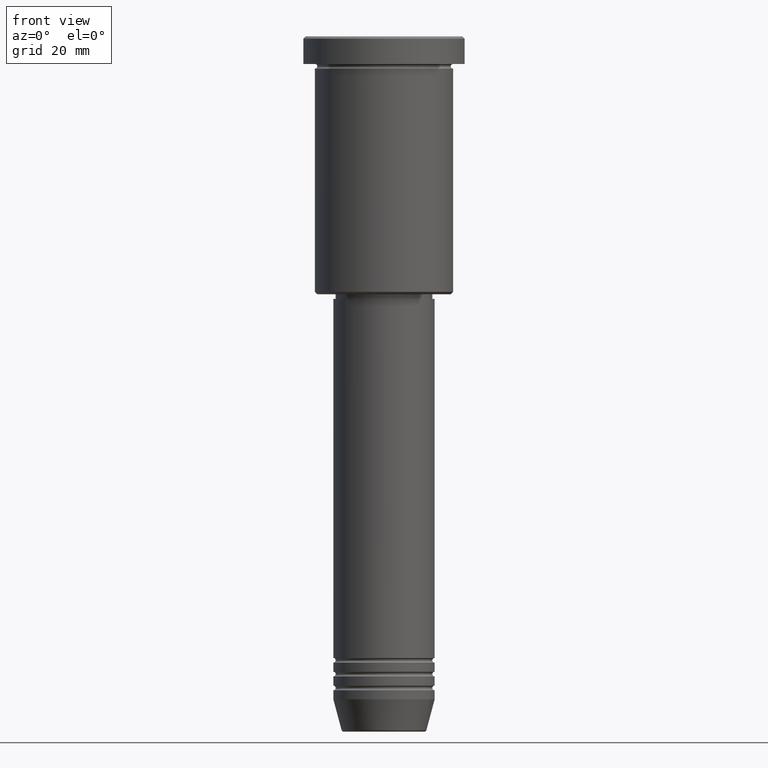
[diagram: clean part render]
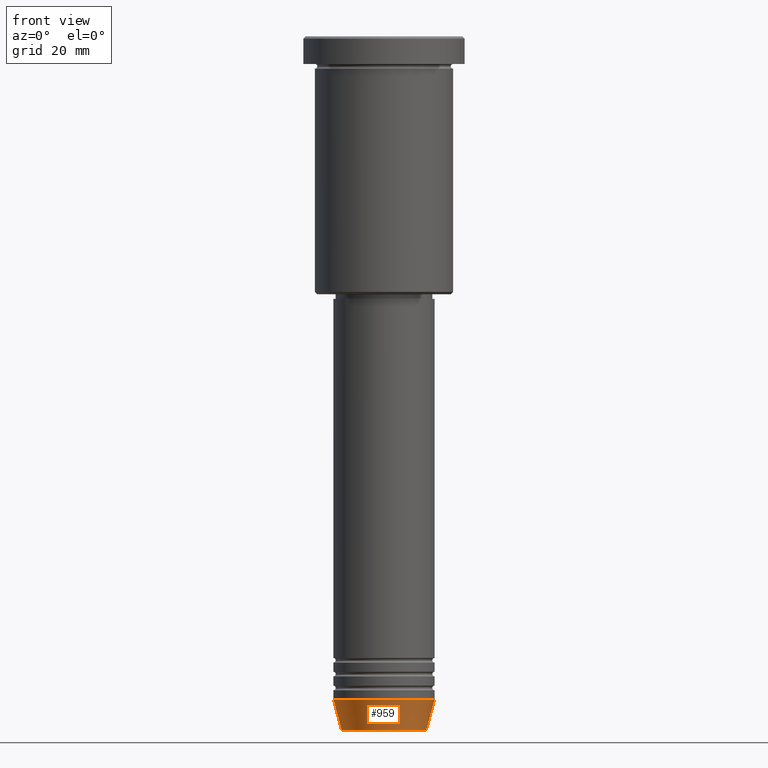
[diagram: same view with one face highlighted and labeled with its STEP entity id]
A machine part, front view. The second image highlights one B-rep face of the part: STEP entity #959.
In plain terms, the highlighted conical surface has half-angle 15 deg.
Its self-contained STEP definition (entity closure, byte-faithful):
#1 = CARTESIAN_POINT ( 'NONE',  ( 11.00000000000000000, 0.000000000000000000, -144.0000000000000284 ) ) ;
#11 = DIRECTION ( 'NONE',  ( 0.2588190451025213501, 0.000000000000000000, 0.9659258262890680902 ) ) ;
#58 = LINE ( 'NONE', #1039, #928 ) ;
#64 = DIRECTION ( 'NONE',  ( 1.000000000000000000, 0.000000000000000000, 0.000000000000000000 ) ) ;
#71 = ORIENTED_EDGE ( 'NONE', *, *, #1020, .F. ) ;
#77 = CARTESIAN_POINT ( 'NONE',  ( 0.000000000000000000, 0.000000000000000000, -150.6294095225512706 ) ) ;
#126 = ORIENTED_EDGE ( 'NONE', *, *, #1135, .F. ) ;
#131 = CARTESIAN_POINT ( 'NONE',  ( -9.223655072137189492, 1.238341722557647202E-15, -150.6294095225512706 ) ) ;
#140 = VERTEX_POINT ( 'NONE', #131 ) ;
#161 = AXIS2_PLACEMENT_3D ( 'NONE', #77, #439, #1093 ) ;
#166 = CARTESIAN_POINT ( 'NONE',  ( -11.00000000000000000, 1.347111479062088405E-15, -144.0000000000000284 ) ) ;
#194 = DIRECTION ( 'NONE',  ( 1.000000000000000000, 0.000000000000000000, 0.000000000000000000 ) ) ;
#210 = VERTEX_POINT ( 'NONE', #1073 ) ;
#316 = AXIS2_PLACEMENT_3D ( 'NONE', #1013, #477, #194 ) ;
#327 = EDGE_CURVE ( 'NONE', #140, #556, #608, .T. ) ;
#368 = ORIENTED_EDGE ( 'NONE', *, *, #327, .T. ) ;
#376 = FACE_OUTER_BOUND ( 'NONE', #781, .T. ) ;
#382 = EDGE_CURVE ( 'NONE', #556, #210, #932, .T. ) ;
#439 = DIRECTION ( 'NONE',  ( -0.000000000000000000, -0.000000000000000000, 1.000000000000000000 ) ) ;
#477 = DIRECTION ( 'NONE',  ( -0.000000000000000000, -0.000000000000000000, 1.000000000000000000 ) ) ;
#537 = VECTOR ( 'NONE', #11, 1000.000000000000000 ) ;
#556 = VERTEX_POINT ( 'NONE', #1024 ) ;
#608 = CIRCLE ( 'NONE', #161, 9.223655072137189492 ) ;
#674 = VERTEX_POINT ( 'NONE', #166 ) ;
#679 = DIRECTION ( 'NONE',  ( -0.2588190451025213501, 3.169619151431772337E-17, 0.9659258262890680902 ) ) ;
#751 = CIRCLE ( 'NONE', #1021, 11.00000000000000000 ) ;
#781 = EDGE_LOOP ( 'NONE', ( #71, #368, #1076, #126 ) ) ;
#928 = VECTOR ( 'NONE', #679, 1000.000000000000000 ) ;
#932 = LINE ( 'NONE', #1, #537 ) ;
#959 = ADVANCED_FACE ( 'NONE', ( #376 ), #1108, .T. ) ;
#979 = DIRECTION ( 'NONE',  ( -0.000000000000000000, -0.000000000000000000, 1.000000000000000000 ) ) ;
#1013 = CARTESIAN_POINT ( 'NONE',  ( 0.000000000000000000, 0.000000000000000000, -144.0000000000000284 ) ) ;
#1020 = EDGE_CURVE ( 'NONE', #140, #674, #58, .T. ) ;
#1021 = AXIS2_PLACEMENT_3D ( 'NONE', #1079, #979, #64 ) ;
#1024 = CARTESIAN_POINT ( 'NONE',  ( 9.223655072137189492, 0.000000000000000000, -150.6294095225512706 ) ) ;
#1039 = CARTESIAN_POINT ( 'NONE',  ( -11.00000000000000000, 1.347111479062088405E-15, -144.0000000000000284 ) ) ;
#1073 = CARTESIAN_POINT ( 'NONE',  ( 11.00000000000000000, 0.000000000000000000, -144.0000000000000284 ) ) ;
#1076 = ORIENTED_EDGE ( 'NONE', *, *, #382, .T. ) ;
#1079 = CARTESIAN_POINT ( 'NONE',  ( 0.000000000000000000, 0.000000000000000000, -144.0000000000000284 ) ) ;
#1093 = DIRECTION ( 'NONE',  ( 1.000000000000000000, 0.000000000000000000, 0.000000000000000000 ) ) ;
#1108 = CONICAL_SURFACE ( 'NONE', #316, 11.00000000000000000, 0.2617993877991500740 ) ;
#1135 = EDGE_CURVE ( 'NONE', #674, #210, #751, .T. ) ;